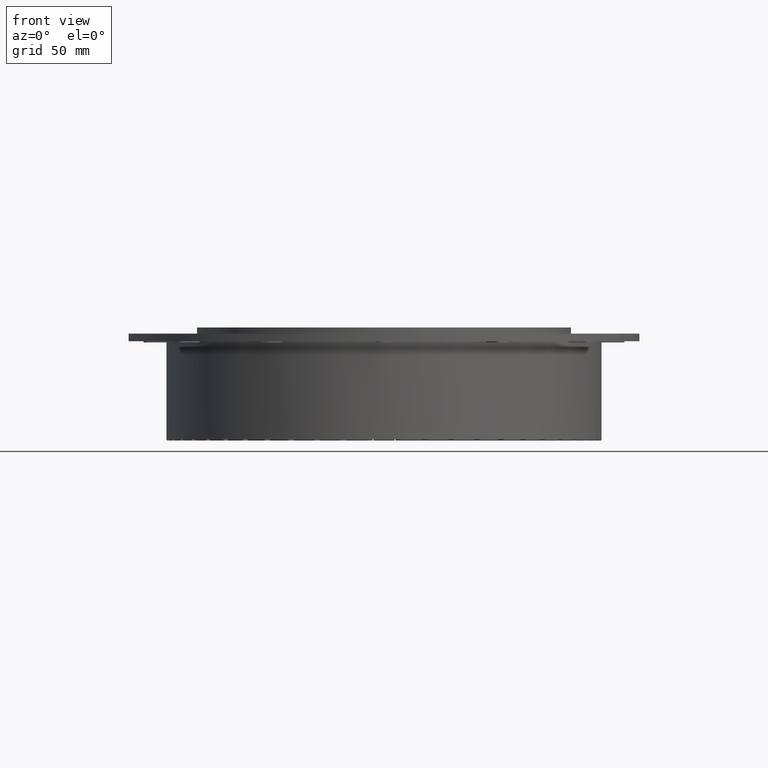
[diagram: clean part render]
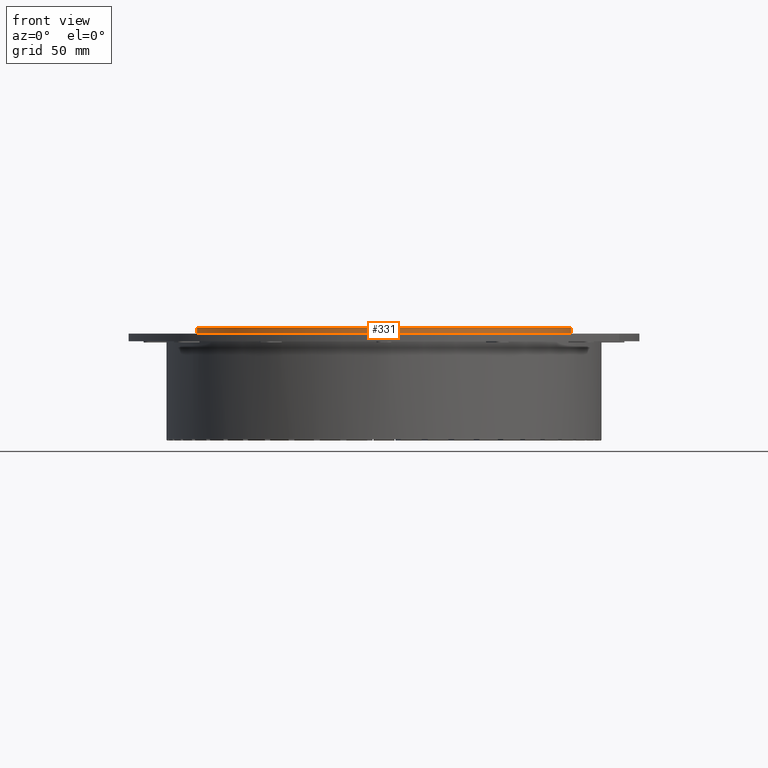
[diagram: same view with one face highlighted and labeled with its STEP entity id]
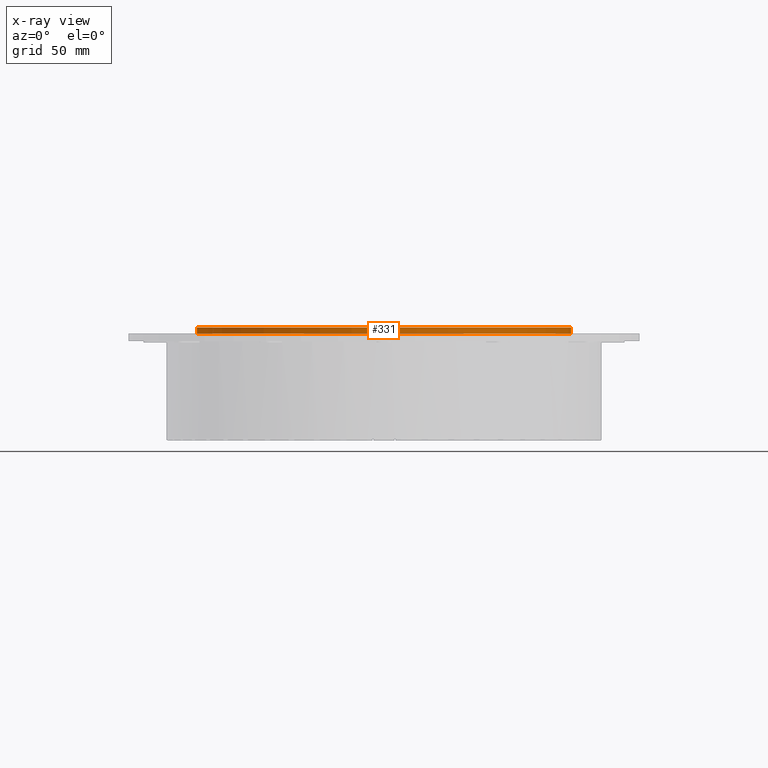
[diagram: x-ray of the same camera — body ghosted, the highlighted face saturated]
A machine part, front view. The second image highlights one B-rep face of the part: STEP entity #331.
The next image is the same camera in x-ray: the body ghosted, the highlighted face saturated — about 0% of this face is hidden behind the body in this view.
In plain terms, the highlighted cylindrical surface (bore or boss wall) has radius 122.5 mm, axis along (-0, 0, -1).
Its self-contained STEP definition (entity closure, byte-faithful):
#304=CARTESIAN_POINT('',(8.516964E-015,-3.194574E-015,71.100000000000023));
#305=DIRECTION('',(-1.204647E-016,0.0,-1.0));
#306=DIRECTION('',(1.0,0.0,0.0));
#307=AXIS2_PLACEMENT_3D('',#304,#305,#306);
#308=CYLINDRICAL_SURFACE('',#307,122.5);
#309=CARTESIAN_POINT('',(122.5,-3.194574E-015,69.100000000000023));
#310=VERTEX_POINT('',#309);
#311=CARTESIAN_POINT('',(8.276034E-015,-3.194574E-015,69.100000000000037));
#312=DIRECTION('',(0.0,0.0,-1.0));
#313=DIRECTION('',(1.0,0.0,0.0));
#314=AXIS2_PLACEMENT_3D('',#311,#312,#313);
#315=CIRCLE('',#314,122.5);
#316=EDGE_CURVE('',#310,#310,#315,.T.);
#317=ORIENTED_EDGE('',*,*,#316,.F.);
#318=EDGE_LOOP('',(#317));
#319=FACE_OUTER_BOUND('',#318,.T.);
#320=CARTESIAN_POINT('',(122.5,-3.194574E-015,73.100000000000009));
#321=VERTEX_POINT('',#320);
#322=CARTESIAN_POINT('',(8.757893E-015,-3.194574E-015,73.100000000000023));
#323=DIRECTION('',(0.0,0.0,-1.0));
#324=DIRECTION('',(1.0,0.0,0.0));
#325=AXIS2_PLACEMENT_3D('',#322,#323,#324);
#326=CIRCLE('',#325,122.5);
#327=EDGE_CURVE('',#321,#321,#326,.T.);
#328=ORIENTED_EDGE('',*,*,#327,.T.);
#329=EDGE_LOOP('',(#328));
#330=FACE_BOUND('',#329,.T.);
#331=ADVANCED_FACE('',(#319,#330),#308,.T.);